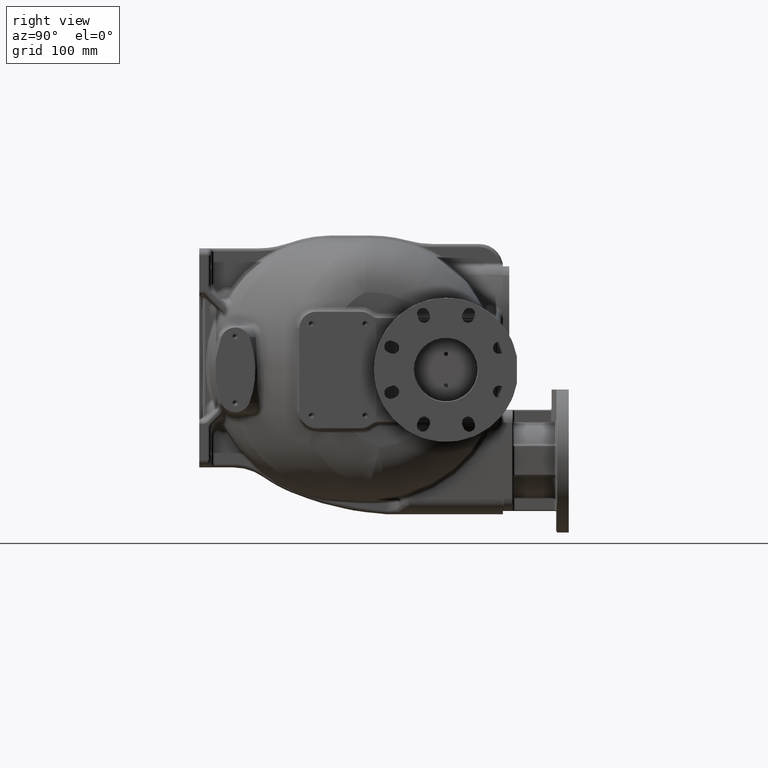
[diagram: clean part render]
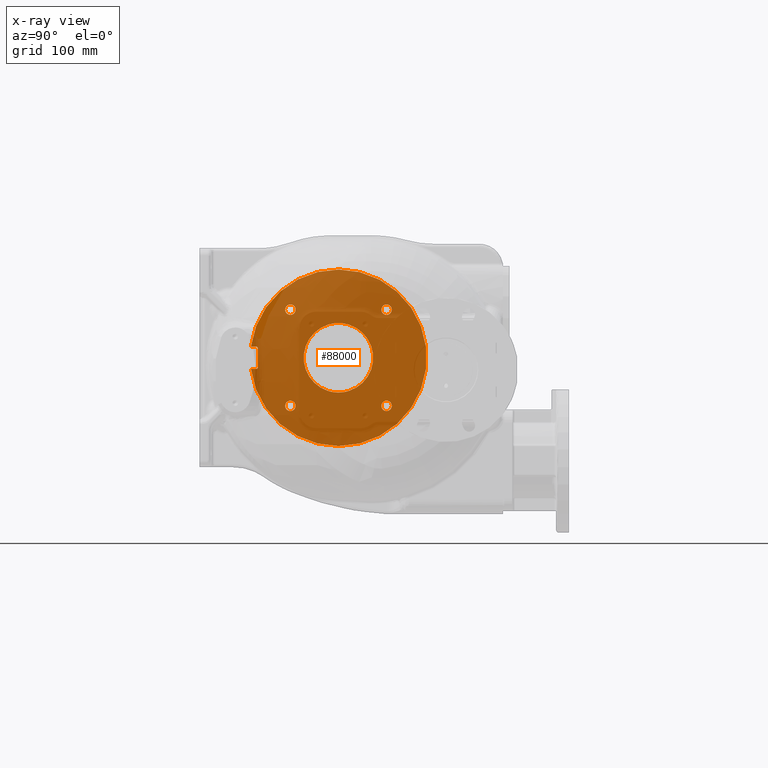
[diagram: x-ray — body ghosted, one internal face saturated and labeled with its STEP entity id]
A machine part, right view, then the same camera in x-ray: the body is ghosted and one INTERNAL B-rep face — a face not visible from any outside direction — is saturated and labeled: STEP entity #88000.
In plain terms, the highlighted planar face has unit normal (-1, 0, 0).
Its self-contained STEP definition (entity closure, byte-faithful):
#15490=CARTESIAN_POINT('',(-9.999999999998E-1,2.2E2,-5.5E1));
#15491=CARTESIAN_POINT('',(-9.999999999998E-1,2.204013566445E2,-5.5E1));
#15492=CARTESIAN_POINT('',(-9.999999992458E-1,2.212038459017E2,
-5.499121587330E1));
#15493=CARTESIAN_POINT('',(-1.000000002639E0,2.224071732808E2,
-5.495169414794E1));
#15494=CARTESIAN_POINT('',(-9.999999901972E-1,2.236092973885E2,
-5.488584602419E1));
#15495=CARTESIAN_POINT('',(-1.000000036571E0,2.248097044465E2,
-5.479370287332E1));
#15496=CARTESIAN_POINT('',(-9.999998635173E-1,2.260078052631E2,
-5.467530926391E1));
#15497=CARTESIAN_POINT('',(-1.000000509358E0,2.272030366546E2,
-5.453071881173E1));
#15498=CARTESIAN_POINT('',(-9.999980990477E-1,2.283948155292E2,
-5.436000945293E1));
#15499=CARTESIAN_POINT('',(-1.000007094450E0,2.295825594778E2,
-5.416323586054E1));
#15500=CARTESIAN_POINT('',(-9.999735231524E-1,2.307657368523E2,
-5.394059614154E1));
#15501=CARTESIAN_POINT('',(-1.000098812940E0,2.319436544385E2,
-5.369180839823E1));
#15502=CARTESIAN_POINT('',(-9.996312250879E-1,2.331162329097E2,
-5.341843970897E1));
#15503=CARTESIAN_POINT('',(-1.001376286707E0,2.342811139100E2,
-5.311521396176E1));
#15504=CARTESIAN_POINT('',(-9.948636280810E-1,2.354444543415E2,
-5.280245209784E1));
#15505=CARTESIAN_POINT('',(-1.011067343339E0,2.362018838219E2,
-5.253749503206E1));
#15506=CARTESIAN_POINT('',(-1.011067343339E0,2.365848039415E2,
-5.241633709945E1));
#15508=CARTESIAN_POINT('',(-1.011067343339E0,2.365848044191E2,
5.241633694830E1));
#15509=CARTESIAN_POINT('',(-1.011067343339E0,2.362018839833E2,
5.253749499118E1));
#15510=CARTESIAN_POINT('',(-9.948636280813E-1,2.354444542787E2,
5.280245211505E1));
#15511=CARTESIAN_POINT('',(-1.001376286708E0,2.342811137024E2,
5.311521401700E1));
#15512=CARTESIAN_POINT('',(-9.996312250882E-1,2.331162331071E2,
5.341843965786E1));
#15513=CARTESIAN_POINT('',(-1.000098812940E0,2.319436547356E2,
5.369180833157E1));
#15514=CARTESIAN_POINT('',(-9.999735231527E-1,2.307657373436E2,
5.394059604176E1));
#15515=CARTESIAN_POINT('',(-1.000007094450E0,2.295825601659E2,
5.416323573749E1));
#15516=CARTESIAN_POINT('',(-9.999980990480E-1,2.283948163653E2,
5.436000932313E1));
#15517=CARTESIAN_POINT('',(-1.000000509359E0,2.272030375791E2,
5.453071868844E1));
#15518=CARTESIAN_POINT('',(-9.999998635176E-1,2.260078063754E2,
5.467530914102E1));
#15519=CARTESIAN_POINT('',(-1.000000036571E0,2.248097055339E2,
5.479370277822E1));
#15520=CARTESIAN_POINT('',(-9.999999901975E-1,2.236092984171E2,
5.488584595776E1));
#15521=CARTESIAN_POINT('',(-1.000000002639E0,2.224071740727E2,
5.495169411457E1));
#15522=CARTESIAN_POINT('',(-9.999999992461E-1,2.212038465285E2,
5.499121586193E1));
#15523=CARTESIAN_POINT('',(-1.E0,2.204013568818E2,5.5E1));
#15524=CARTESIAN_POINT('',(-1.E0,2.2E2,5.5E1));
#15530=CARTESIAN_POINT('',(-1.011067343339E0,2.365848039415E2,
-5.241633709945E1));
#15560=CARTESIAN_POINT('',(-1.E0,2.2E2,6.859012444244E-14));
#15561=DIRECTION('',(1.E0,0.E0,0.E0));
#15562=DIRECTION('',(0.E0,3.016651674937E-1,-9.534139325188E-1));
#15563=AXIS2_PLACEMENT_3D('',#15560,#15561,#15562);
#15570=CARTESIAN_POINT('',(-9.999999999996E-1,2.960139789776E2,
-7.601397897755E1));
#15571=DIRECTION('',(-1.E0,0.E0,0.E0));
#15572=DIRECTION('',(0.E0,0.E0,1.E0));
#15573=AXIS2_PLACEMENT_3D('',#15570,#15571,#15572);
#15575=CARTESIAN_POINT('',(-9.999999999996E-1,2.960139789776E2,
-7.601397897755E1));
#15576=DIRECTION('',(-1.E0,0.E0,0.E0));
#15577=DIRECTION('',(0.E0,0.E0,-1.E0));
#15578=AXIS2_PLACEMENT_3D('',#15575,#15576,#15577);
#15580=CARTESIAN_POINT('',(-1.E0,1.439860210224E2,-7.601397897755E1));
#15581=DIRECTION('',(-1.E0,0.E0,0.E0));
#15582=DIRECTION('',(0.E0,1.E0,0.E0));
#15583=AXIS2_PLACEMENT_3D('',#15580,#15581,#15582);
#15585=CARTESIAN_POINT('',(-1.E0,1.439860210224E2,-7.601397897755E1));
#15586=DIRECTION('',(-1.E0,0.E0,0.E0));
#15587=DIRECTION('',(0.E0,-1.E0,0.E0));
#15588=AXIS2_PLACEMENT_3D('',#15585,#15586,#15587);
#15590=CARTESIAN_POINT('',(-1.E0,1.439860210224E2,7.601397897755E1));
#15591=DIRECTION('',(-1.E0,0.E0,0.E0));
#15592=DIRECTION('',(0.E0,0.E0,-1.E0));
#15593=AXIS2_PLACEMENT_3D('',#15590,#15591,#15592);
#15595=CARTESIAN_POINT('',(-1.E0,1.439860210224E2,7.601397897755E1));
#15596=DIRECTION('',(-1.E0,0.E0,0.E0));
#15597=DIRECTION('',(0.E0,0.E0,1.E0));
#15598=AXIS2_PLACEMENT_3D('',#15595,#15596,#15597);
#15600=CARTESIAN_POINT('',(-1.E0,2.960139789776E2,7.601397897755E1));
#15601=DIRECTION('',(-1.E0,0.E0,0.E0));
#15602=DIRECTION('',(0.E0,-1.E0,0.E0));
#15603=AXIS2_PLACEMENT_3D('',#15600,#15601,#15602);
#15605=CARTESIAN_POINT('',(-1.E0,2.960139789776E2,7.601397897755E1));
#15606=DIRECTION('',(-1.E0,0.E0,0.E0));
#15607=DIRECTION('',(0.E0,1.E0,0.E0));
#15608=AXIS2_PLACEMENT_3D('',#15605,#15606,#15607);
#15652=DIRECTION('',(0.E0,1.E0,0.E0));
#15653=VECTOR('',#15652,8.485506485283E0);
#15654=CARTESIAN_POINT('',(-1.E0,8.201449351472E1,1.75E1));
#15655=LINE('',#15654,#15653);
#15803=DIRECTION('',(0.E0,-1.E0,0.E0));
#15804=VECTOR('',#15803,8.485506485283E0);
#15805=CARTESIAN_POINT('',(-1.E0,9.05E1,-1.75E1));
#15806=LINE('',#15805,#15804);
#15858=CARTESIAN_POINT('',(-1.E0,8.201449351472E1,-2.05E1));
#15859=DIRECTION('',(-1.E0,0.E0,0.E0));
#15860=DIRECTION('',(0.E0,-1.363089586677E-1,9.906663756214E-1));
#15861=AXIS2_PLACEMENT_3D('',#15858,#15859,#15860);
#16894=CARTESIAN_POINT('',(-1.E0,8.201449351472E1,2.05E1));
#16895=DIRECTION('',(1.E0,0.E0,0.E0));
#16896=DIRECTION('',(0.E0,-1.363089586677E-1,-9.906663756214E-1));
#16897=AXIS2_PLACEMENT_3D('',#16894,#16895,#16896);
#16913=CARTESIAN_POINT('',(-9.999999999999E-1,2.2E2,6.748794232320E-14));
#16914=DIRECTION('',(-1.E0,0.E0,0.E0));
#16915=DIRECTION('',(0.E0,-9.920747911203E-1,1.256487517788E-1));
#16916=AXIS2_PLACEMENT_3D('',#16913,#16914,#16915);
#43832=CARTESIAN_POINT('',(-1.E0,9.05E1,-1.55E1));
#43833=DIRECTION('',(1.E0,0.E0,0.E0));
#43834=DIRECTION('',(0.E0,0.E0,-1.E0));
#43835=AXIS2_PLACEMENT_3D('',#43832,#43833,#43834);
#43842=DIRECTION('',(0.E0,0.E0,-1.E0));
#43843=VECTOR('',#43842,3.1E1);
#43844=CARTESIAN_POINT('',(-1.E0,9.25E1,1.55E1));
#43845=LINE('',#43844,#43843);
#43858=CARTESIAN_POINT('',(-1.E0,9.05E1,1.55E1));
#43859=DIRECTION('',(1.E0,0.E0,0.E0));
#43860=DIRECTION('',(0.E0,1.E0,-2.264854970235E-13));
#43861=AXIS2_PLACEMENT_3D('',#43858,#43859,#43860);
#44253=CARTESIAN_POINT('',(-9.999999999998E-1,2.2E2,-5.5E1));
#44254=CARTESIAN_POINT('',(-9.999999999998E-1,2.195986431182E2,-5.5E1));
#44255=CARTESIAN_POINT('',(-9.999999992458E-1,2.187961534715E2,
-5.499121586193E1));
#44256=CARTESIAN_POINT('',(-1.000000002639E0,2.175928259273E2,
-5.495169411457E1));
#44257=CARTESIAN_POINT('',(-9.999999901972E-1,2.163907015829E2,
-5.488584595776E1));
#44258=CARTESIAN_POINT('',(-1.000000036571E0,2.151902944661E2,
-5.479370277822E1));
#44259=CARTESIAN_POINT('',(-9.999998635174E-1,2.139921936246E2,
-5.467530914102E1));
#44260=CARTESIAN_POINT('',(-1.000000509359E0,2.127969624209E2,
-5.453071868844E1));
#44261=CARTESIAN_POINT('',(-9.999980990477E-1,2.116051836347E2,
-5.436000932313E1));
#44262=CARTESIAN_POINT('',(-1.000007094450E0,2.104174398341E2,
-5.416323573749E1));
#44263=CARTESIAN_POINT('',(-9.999735231524E-1,2.092342626564E2,
-5.394059604176E1));
#44264=CARTESIAN_POINT('',(-1.000098812940E0,2.080563452644E2,
-5.369180833157E1));
#44265=CARTESIAN_POINT('',(-9.996312250880E-1,2.068837668929E2,
-5.341843965786E1));
#44266=CARTESIAN_POINT('',(-1.001376286708E0,2.057188862976E2,
-5.311521401700E1));
#44267=CARTESIAN_POINT('',(-9.948636280811E-1,2.045555457213E2,
-5.280245211505E1));
#44268=CARTESIAN_POINT('',(-1.011067343339E0,2.037981160167E2,
-5.253749499118E1));
#44269=CARTESIAN_POINT('',(-1.011067343339E0,2.034151955809E2,
-5.241633694830E1));
#44271=CARTESIAN_POINT('',(-1.011067343339E0,2.034151960585E2,
5.241633709945E1));
#44272=CARTESIAN_POINT('',(-1.011067343339E0,2.037981161781E2,
5.253749503206E1));
#44273=CARTESIAN_POINT('',(-9.948636280813E-1,2.045555456585E2,
5.280245209784E1));
#44274=CARTESIAN_POINT('',(-1.001376286708E0,2.057188860900E2,
5.311521396176E1));
#44275=CARTESIAN_POINT('',(-9.996312250883E-1,2.068837670903E2,
5.341843970897E1));
#44276=CARTESIAN_POINT('',(-1.000098812940E0,2.080563455615E2,
5.369180839823E1));
#44277=CARTESIAN_POINT('',(-9.999735231527E-1,2.092342631477E2,
5.394059614154E1));
#44278=CARTESIAN_POINT('',(-1.000007094450E0,2.104174405222E2,
5.416323586054E1));
#44279=CARTESIAN_POINT('',(-9.999980990480E-1,2.116051844708E2,
5.436000945293E1));
#44280=CARTESIAN_POINT('',(-1.000000509359E0,2.127969633454E2,
5.453071881173E1));
#44281=CARTESIAN_POINT('',(-9.999998635177E-1,2.139921947369E2,
5.467530926391E1));
#44282=CARTESIAN_POINT('',(-1.000000036571E0,2.151902955535E2,
5.479370287332E1));
#44283=CARTESIAN_POINT('',(-9.999999901975E-1,2.163907026115E2,
5.488584602419E1));
#44284=CARTESIAN_POINT('',(-1.000000002639E0,2.175928267192E2,
5.495169414794E1));
#44285=CARTESIAN_POINT('',(-9.999999992461E-1,2.187961540983E2,
5.499121587330E1));
#44286=CARTESIAN_POINT('',(-1.E0,2.195986433555E2,5.5E1));
#44287=CARTESIAN_POINT('',(-1.E0,2.2E2,5.5E1));
#44853=CARTESIAN_POINT('',(-1.011067343339E0,2.034151960585E2,
5.241633709945E1));
#44883=CARTESIAN_POINT('',(-1.E0,2.2E2,6.859012444244E-14));
#44884=DIRECTION('',(-1.E0,0.E0,0.E0));
#44885=DIRECTION('',(0.E0,-3.016651790621E-1,-9.534139288585E-1));
#44886=AXIS2_PLACEMENT_3D('',#44883,#44884,#44885);
#44908=CARTESIAN_POINT('',(-1.011067343339E0,2.034151955809E2,
-5.241633694830E1));
#46032=CARTESIAN_POINT('',(-1.011067343339E0,2.365848044191E2,
5.241633694830E1));
#67468=CARTESIAN_POINT('',(-9.999999999998E-1,2.2E2,-5.5E1));
#67470=VERTEX_POINT('',#67468);
#67472=CARTESIAN_POINT('',(-1.E0,2.2E2,5.5E1));
#67474=VERTEX_POINT('',#67472);
#67476=CARTESIAN_POINT('',(-1.E0,8.201449351472E1,1.75E1));
#67477=CARTESIAN_POINT('',(-1.E0,9.05E1,1.75E1));
#67478=VERTEX_POINT('',#67476);
#67479=VERTEX_POINT('',#67477);
#67480=CARTESIAN_POINT('',(-1.E0,9.25E1,1.55E1));
#67481=CARTESIAN_POINT('',(-1.E0,9.25E1,-1.55E1));
#67482=VERTEX_POINT('',#67480);
#67483=VERTEX_POINT('',#67481);
#67484=CARTESIAN_POINT('',(-1.E0,9.05E1,-1.75E1));
#67485=CARTESIAN_POINT('',(-1.E0,8.201449351472E1,-1.75E1));
#67486=VERTEX_POINT('',#67484);
#67487=VERTEX_POINT('',#67485);
#67512=CARTESIAN_POINT('',(-1.E0,8.160556663871E1,1.752800087314E1));
#67514=VERTEX_POINT('',#67512);
#67517=CARTESIAN_POINT('',(-1.E0,8.160556663871E1,-1.752800087314E1));
#67519=VERTEX_POINT('',#67517);
#67528=VERTEX_POINT('',#44853);
#67529=VERTEX_POINT('',#44908);
#67530=VERTEX_POINT('',#46032);
#67531=VERTEX_POINT('',#15530);
#67536=CARTESIAN_POINT('',(-9.999999999996E-1,2.960139789776E2,
-6.776397897755E1));
#67537=CARTESIAN_POINT('',(-9.999999999996E-1,2.960139789776E2,
-8.426397897755E1));
#67538=VERTEX_POINT('',#67536);
#67539=VERTEX_POINT('',#67537);
#67544=CARTESIAN_POINT('',(-1.E0,1.522360210224E2,-7.601397897755E1));
#67545=VERTEX_POINT('',#67544);
#67546=CARTESIAN_POINT('',(-1.E0,1.357360210224E2,-7.601397897755E1));
#67547=VERTEX_POINT('',#67546);
#67552=CARTESIAN_POINT('',(-1.E0,1.439860210224E2,6.776397897755E1));
#67553=VERTEX_POINT('',#67552);
#67554=CARTESIAN_POINT('',(-1.E0,1.439860210224E2,8.426397897755E1));
#67555=VERTEX_POINT('',#67554);
#67560=CARTESIAN_POINT('',(-1.E0,2.877639789776E2,7.601397897755E1));
#67561=VERTEX_POINT('',#67560);
#67562=CARTESIAN_POINT('',(-1.E0,3.042639789776E2,7.601397897755E1));
#67563=VERTEX_POINT('',#67562);
#87942=CARTESIAN_POINT('',(-1.E0,2.2E2,6.748794232320E-14));
#87943=DIRECTION('',(-1.E0,0.E0,0.E0));
#87944=DIRECTION('',(0.E0,0.E0,1.E0));
#87945=AXIS2_PLACEMENT_3D('',#87942,#87943,#87944);
#87946=PLANE('',#87945);
#87948=ORIENTED_EDGE('',*,*,#87947,.T.);
#87950=ORIENTED_EDGE('',*,*,#87949,.F.);
#87952=ORIENTED_EDGE('',*,*,#87951,.T.);
#87954=ORIENTED_EDGE('',*,*,#87953,.F.);
#87956=ORIENTED_EDGE('',*,*,#87955,.T.);
#87958=ORIENTED_EDGE('',*,*,#87957,.F.);
#87960=ORIENTED_EDGE('',*,*,#87959,.F.);
#87962=ORIENTED_EDGE('',*,*,#87961,.T.);
#87963=EDGE_LOOP('',(#87948,#87950,#87952,#87954,#87956,#87958,#87960,#87962));
#87964=FACE_OUTER_BOUND('',#87963,.F.);
#87966=ORIENTED_EDGE('',*,*,#87965,.T.);
#87968=ORIENTED_EDGE('',*,*,#87967,.T.);
#87970=ORIENTED_EDGE('',*,*,#87969,.T.);
#87971=ORIENTED_EDGE('',*,*,#87904,.F.);
#87972=ORIENTED_EDGE('',*,*,#87933,.F.);
#87973=ORIENTED_EDGE('',*,*,#87889,.F.);
#87974=EDGE_LOOP('',(#87966,#87968,#87970,#87971,#87972,#87973));
#87975=FACE_BOUND('',#87974,.F.);
#87977=ORIENTED_EDGE('',*,*,#87976,.T.);
#87979=ORIENTED_EDGE('',*,*,#87978,.T.);
#87980=EDGE_LOOP('',(#87977,#87979));
#87981=FACE_BOUND('',#87980,.F.);
#87983=ORIENTED_EDGE('',*,*,#87982,.T.);
#87985=ORIENTED_EDGE('',*,*,#87984,.T.);
#87986=EDGE_LOOP('',(#87983,#87985));
#87987=FACE_BOUND('',#87986,.F.);
#87989=ORIENTED_EDGE('',*,*,#87988,.T.);
#87991=ORIENTED_EDGE('',*,*,#87990,.T.);
#87992=EDGE_LOOP('',(#87989,#87991));
#87993=FACE_BOUND('',#87992,.F.);
#87995=ORIENTED_EDGE('',*,*,#87994,.T.);
#87997=ORIENTED_EDGE('',*,*,#87996,.T.);
#87998=EDGE_LOOP('',(#87995,#87997));
#87999=FACE_BOUND('',#87998,.F.);
#88000=ADVANCED_FACE('',(#87964,#87975,#87981,#87987,#87993,#87999),#87946,.T.);
#15507=B_SPLINE_CURVE_WITH_KNOTS('',3,(#15490,#15491,#15492,#15493,#15494,
#15495,#15496,#15497,#15498,#15499,#15500,#15501,#15502,#15503,#15504,#15505,
#15506),.UNSPECIFIED.,.F.,.F.,(4,1,1,1,1,1,1,1,1,1,1,1,1,1,4),(0.E0,
7.142857142857E-2,1.428571428571E-1,2.142857142857E-1,2.857142857143E-1,
3.571428571429E-1,4.285714285714E-1,5.E-1,5.714285714286E-1,6.428571428571E-1,
7.142857142857E-1,7.857142857143E-1,8.571428571429E-1,9.285714285714E-1,1.E0),
.UNSPECIFIED.);
#15525=B_SPLINE_CURVE_WITH_KNOTS('',3,(#15508,#15509,#15510,#15511,#15512,
#15513,#15514,#15515,#15516,#15517,#15518,#15519,#15520,#15521,#15522,#15523,
#15524),.UNSPECIFIED.,.F.,.F.,(4,1,1,1,1,1,1,1,1,1,1,1,1,1,4),(0.E0,
7.142857142857E-2,1.428571428571E-1,2.142857142857E-1,2.857142857143E-1,
3.571428571429E-1,4.285714285714E-1,5.E-1,5.714285714286E-1,6.428571428571E-1,
7.142857142857E-1,7.857142857143E-1,8.571428571429E-1,9.285714285714E-1,1.E0),
.UNSPECIFIED.);
#15564=CIRCLE('',#15563,5.494006342114E1);
#15574=CIRCLE('',#15573,8.25E0);
#15579=CIRCLE('',#15578,8.25E0);
#15584=CIRCLE('',#15583,8.25E0);
#15589=CIRCLE('',#15588,8.25E0);
#15594=CIRCLE('',#15593,8.25E0);
#15599=CIRCLE('',#15598,8.25E0);
#15604=CIRCLE('',#15603,8.25E0);
#15609=CIRCLE('',#15608,8.25E0);
#15862=CIRCLE('',#15861,3.E0);
#16898=CIRCLE('',#16897,3.E0);
#16917=CIRCLE('',#16916,1.395E2);
#43836=CIRCLE('',#43835,2.E0);
#43862=CIRCLE('',#43861,2.E0);
#44270=B_SPLINE_CURVE_WITH_KNOTS('',3,(#44253,#44254,#44255,#44256,#44257,
#44258,#44259,#44260,#44261,#44262,#44263,#44264,#44265,#44266,#44267,#44268,
#44269),.UNSPECIFIED.,.F.,.F.,(4,1,1,1,1,1,1,1,1,1,1,1,1,1,4),(0.E0,
7.142857142857E-2,1.428571428571E-1,2.142857142857E-1,2.857142857143E-1,
3.571428571429E-1,4.285714285714E-1,5.E-1,5.714285714286E-1,6.428571428571E-1,
7.142857142857E-1,7.857142857143E-1,8.571428571429E-1,9.285714285714E-1,1.E0),
.UNSPECIFIED.);
#44288=B_SPLINE_CURVE_WITH_KNOTS('',3,(#44271,#44272,#44273,#44274,#44275,
#44276,#44277,#44278,#44279,#44280,#44281,#44282,#44283,#44284,#44285,#44286,
#44287),.UNSPECIFIED.,.F.,.F.,(4,1,1,1,1,1,1,1,1,1,1,1,1,1,4),(0.E0,
7.142857142857E-2,1.428571428571E-1,2.142857142857E-1,2.857142857143E-1,
3.571428571429E-1,4.285714285714E-1,5.E-1,5.714285714286E-1,6.428571428571E-1,
7.142857142857E-1,7.857142857143E-1,8.571428571429E-1,9.285714285714E-1,1.E0),
.UNSPECIFIED.);
#44887=CIRCLE('',#44886,5.494006342114E1);
#87889=EDGE_CURVE('',#67470,#67531,#15507,.T.);
#87904=EDGE_CURVE('',#67530,#67474,#15525,.T.);
#87933=EDGE_CURVE('',#67531,#67530,#15564,.T.);
#87947=EDGE_CURVE('',#67478,#67479,#15655,.T.);
#87949=EDGE_CURVE('',#67482,#67479,#43862,.T.);
#87951=EDGE_CURVE('',#67482,#67483,#43845,.T.);
#87953=EDGE_CURVE('',#67486,#67483,#43836,.T.);
#87955=EDGE_CURVE('',#67486,#67487,#15806,.T.);
#87957=EDGE_CURVE('',#67519,#67487,#15862,.T.);
#87959=EDGE_CURVE('',#67514,#67519,#16917,.T.);
#87961=EDGE_CURVE('',#67514,#67478,#16898,.T.);
#87965=EDGE_CURVE('',#67470,#67529,#44270,.T.);
#87967=EDGE_CURVE('',#67529,#67528,#44887,.T.);
#87969=EDGE_CURVE('',#67528,#67474,#44288,.T.);
#87976=EDGE_CURVE('',#67538,#67539,#15574,.T.);
#87978=EDGE_CURVE('',#67539,#67538,#15579,.T.);
#87982=EDGE_CURVE('',#67545,#67547,#15584,.T.);
#87984=EDGE_CURVE('',#67547,#67545,#15589,.T.);
#87988=EDGE_CURVE('',#67553,#67555,#15594,.T.);
#87990=EDGE_CURVE('',#67555,#67553,#15599,.T.);
#87994=EDGE_CURVE('',#67561,#67563,#15604,.T.);
#87996=EDGE_CURVE('',#67563,#67561,#15609,.T.);